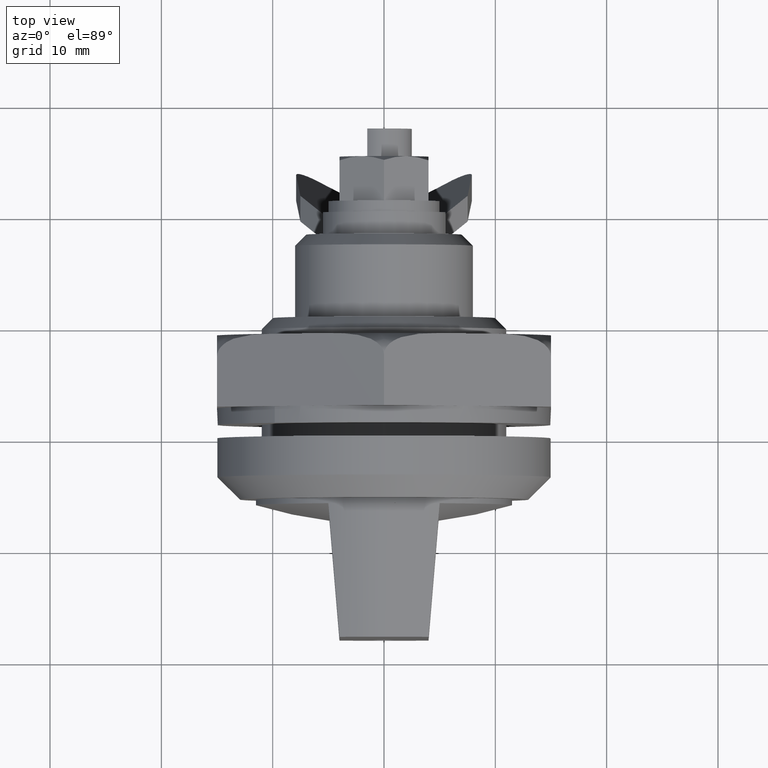
[diagram: clean part render]
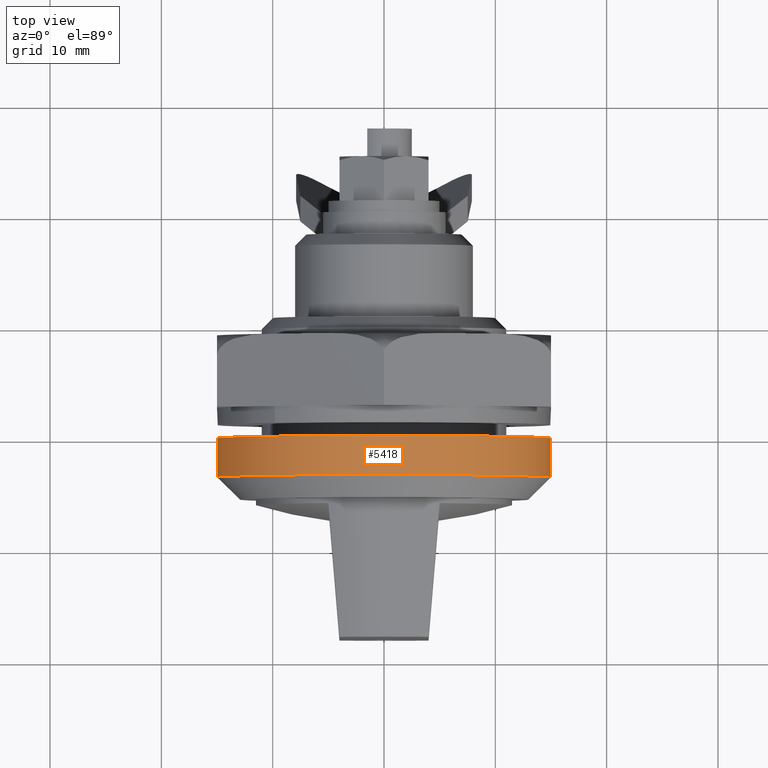
[diagram: same view with one face highlighted and labeled with its STEP entity id]
A machine part, top view. The second image highlights one B-rep face of the part: STEP entity #5418.
In plain terms, the highlighted face is a freeform B-spline surface patch.
Its self-contained STEP definition (entity closure, byte-faithful):
#5041=CARTESIAN_POINT('',(-14.953760005997850,-3.499999999997904,1.176886435934931));
#5042=VERTEX_POINT('',#5041);
#5048=CARTESIAN_POINT('',(-14.972021976327619,-3.499999999997922,0.915728093047656));
#5049=VERTEX_POINT('',#5048);
#5050=CARTESIAN_POINT('',(-14.953760005997857,-3.499999999997904,1.176886435934931));
#5051=CARTESIAN_POINT('',(-14.964030538328123,-3.499999999997912,1.046386949391630));
#5052=CARTESIAN_POINT('',(-14.972021976327627,-3.499999999997922,0.915728093047656));
#5060=(BOUNDED_CURVE()B_SPLINE_CURVE(2,(#5050,#5051,#5052),.UNSPECIFIED.,.F.,.U.)B_SPLINE_CURVE_WITH_KNOTS((3,3),(0.736331300632571,0.739332962241684),.UNSPECIFIED.)CURVE()GEOMETRIC_REPRESENTATION_ITEM()RATIONAL_B_SPLINE_CURVE((0.969723356171407,0.972855475564844,0.976072041672592))REPRESENTATION_ITEM(''));
#5061=EDGE_CURVE('',#5042,#5049,#5060,.T.);
#5099=CARTESIAN_POINT('',(14.972021976327619,-3.499999999997921,-0.915728093047661));
#5100=VERTEX_POINT('',#5099);
#5114=CARTESIAN_POINT('',(0.0,-3.500000000000090,15.0));
#5115=VERTEX_POINT('',#5114);
#5116=CARTESIAN_POINT('',(14.972021976327618,-3.499999999997921,-0.915728093047661));
#5117=CARTESIAN_POINT('',(15.000000000001108,-3.499999999997953,-0.458291449491324));
#5118=CARTESIAN_POINT('',(15.000000000001091,-3.499999999997986,-1.052452E-013));
#5119=CARTESIAN_POINT('',(15.000000000000519,-3.499999999999079,14.999999999999954));
#5120=CARTESIAN_POINT('',(0.0,-3.500000000000090,15.0));
#5128=(BOUNDED_CURVE()B_SPLINE_CURVE(2,(#5116,#5117,#5118,#5119,#5120),.UNSPECIFIED.,.F.,.U.)B_SPLINE_CURVE_WITH_KNOTS((3,2,3),(0.239332962241684,0.250000000000000,0.500000000000000),.UNSPECIFIED.)CURVE()GEOMETRIC_REPRESENTATION_ITEM()RATIONAL_B_SPLINE_CURVE((0.976072041672592,0.987502787903048,1.0,0.707106781186547,1.0))REPRESENTATION_ITEM(''));
#5129=EDGE_CURVE('',#5100,#5115,#5128,.T.);
#5131=CARTESIAN_POINT('',(0.0,-3.500000000000090,15.0));
#5132=CARTESIAN_POINT('',(-13.865857374858358,-3.499999999998997,15.000000000000096));
#5133=CARTESIAN_POINT('',(-14.953760005997857,-3.499999999997904,1.176886435934931));
#5141=(BOUNDED_CURVE()B_SPLINE_CURVE(2,(#5131,#5132,#5133),.UNSPECIFIED.,.F.,.U.)B_SPLINE_CURVE_WITH_KNOTS((3,3),(0.500000000000000,0.736331300632571),.UNSPECIFIED.)CURVE()GEOMETRIC_REPRESENTATION_ITEM()RATIONAL_B_SPLINE_CURVE((1.0,0.723120658605426,0.969723356171407))REPRESENTATION_ITEM(''));
#5142=EDGE_CURVE('',#5115,#5042,#5141,.T.);
#5351=CARTESIAN_POINT('',(14.972021976328000,0.087500000000000,-0.915728093022856));
#5352=CARTESIAN_POINT('',(15.887750069350853,0.087500000000000,14.056293883305143));
#5353=CARTESIAN_POINT('',(0.915728093022855,0.087500000000000,14.972021976328000));
#5354=CARTESIAN_POINT('',(-14.056293883305147,0.087500000000000,15.887750069350853));
#5355=CARTESIAN_POINT('',(-14.972021976328000,0.087500000000000,0.915728093022853));
#5356=CARTESIAN_POINT('',(14.972021976328000,-3.589687500000093,-0.915728093022856));
#5357=CARTESIAN_POINT('',(15.887750069350853,-3.589687500000093,14.056293883305143));
#5358=CARTESIAN_POINT('',(0.915728093022855,-3.589687500000093,14.972021976328000));
#5359=CARTESIAN_POINT('',(-14.056293883305147,-3.589687500000093,15.887750069350853));
#5360=CARTESIAN_POINT('',(-14.972021976328000,-3.589687500000093,0.915728093022853));
#5368=(BOUNDED_SURFACE()B_SPLINE_SURFACE(2,1,((#5351,#5356),(#5352,#5357),(#5353,#5358),(#5354,#5359),(#5355,#5360)),.UNSPECIFIED.,.F.,.F.,.U.)B_SPLINE_SURFACE_WITH_KNOTS((3,2,3),(2,2),(0.0,24.852813742385699,49.705627484771391),(0.0,3.677187500000092),.UNSPECIFIED.)GEOMETRIC_REPRESENTATION_ITEM()RATIONAL_B_SPLINE_SURFACE(((1.0,1.0),(0.707106781186548,0.707106781186548),(1.0,1.0),(0.707106781186548,0.707106781186548),(1.0,1.0)))REPRESENTATION_ITEM('')SURFACE());
#5369=ORIENTED_EDGE('',*,*,#5129,.F.);
#5370=CARTESIAN_POINT('',(14.972022895570889,-2.834850E-015,-0.915713063286929));
#5371=VERTEX_POINT('',#5370);
#5372=CARTESIAN_POINT('',(14.972022895570889,-2.834850E-015,-0.915713063286929));
#5373=CARTESIAN_POINT('',(14.972021976327619,-3.499999999997921,-0.915728093047661));
#5374=QUASI_UNIFORM_CURVE('',1,(#5372,#5373),.UNSPECIFIED.,.F.,.U.);
#5375=EDGE_CURVE('',#5371,#5100,#5374,.T.);
#5376=ORIENTED_EDGE('',*,*,#5375,.F.);
#5377=CARTESIAN_POINT('',(0.0,-2.755364E-015,15.0));
#5378=VERTEX_POINT('',#5377);
#5379=CARTESIAN_POINT('',(14.972022895570886,-2.834850E-015,-0.915713063286929));
#5380=CARTESIAN_POINT('',(14.999999999992564,-2.833708E-015,-0.458283913540036));
#5381=CARTESIAN_POINT('',(14.999999999992680,-2.832493E-015,4.471410E-013));
#5382=CARTESIAN_POINT('',(14.999999999996447,-2.792751E-015,15.000000000000224));
#5383=CARTESIAN_POINT('',(0.0,-2.755364E-015,15.0));
#5391=(BOUNDED_CURVE()B_SPLINE_CURVE(2,(#5379,#5380,#5381,#5382,#5383),.UNSPECIFIED.,.F.,.U.)B_SPLINE_CURVE_WITH_KNOTS((3,2,3),(0.239333135453912,0.250000000000000,0.500000000000000),.UNSPECIFIED.)CURVE()GEOMETRIC_REPRESENTATION_ITEM()RATIONAL_B_SPLINE_CURVE((0.976072412899649,0.987502990833796,1.0,0.707106781186547,1.0))REPRESENTATION_ITEM(''));
#5392=EDGE_CURVE('',#5371,#5378,#5391,.T.);
#5393=ORIENTED_EDGE('',*,*,#5392,.T.);
#5394=CARTESIAN_POINT('',(-14.972022895570889,-2.834850E-015,0.915713063286924));
#5395=VERTEX_POINT('',#5394);
#5396=CARTESIAN_POINT('',(0.0,-2.755364E-015,15.0));
#5397=CARTESIAN_POINT('',(-14.110605195041726,-2.795107E-015,14.999999999999766));
#5398=CARTESIAN_POINT('',(-14.972022895570886,-2.834850E-015,0.915713063286924));
#5406=(BOUNDED_CURVE()B_SPLINE_CURVE(2,(#5396,#5397,#5398),.UNSPECIFIED.,.F.,.U.)B_SPLINE_CURVE_WITH_KNOTS((3,3),(0.500000000000000,0.739333135453912),.UNSPECIFIED.)CURVE()GEOMETRIC_REPRESENTATION_ITEM()RATIONAL_B_SPLINE_CURVE((1.0,0.719603790352751,0.976072412899649))REPRESENTATION_ITEM(''));
#5407=EDGE_CURVE('',#5378,#5395,#5406,.T.);
#5408=ORIENTED_EDGE('',*,*,#5407,.T.);
#5409=CARTESIAN_POINT('',(-14.972022895570889,-2.834850E-015,0.915713063286924));
#5410=CARTESIAN_POINT('',(-14.972021976327619,-3.499999999997922,0.915728093047656));
#5411=QUASI_UNIFORM_CURVE('',1,(#5409,#5410),.UNSPECIFIED.,.F.,.U.);
#5412=EDGE_CURVE('',#5395,#5049,#5411,.T.);
#5413=ORIENTED_EDGE('',*,*,#5412,.T.);
#5414=ORIENTED_EDGE('',*,*,#5061,.F.);
#5415=ORIENTED_EDGE('',*,*,#5142,.F.);
#5416=EDGE_LOOP('',(#5369,#5376,#5393,#5408,#5413,#5414,#5415));
#5417=FACE_OUTER_BOUND('',#5416,.T.);
#5418=ADVANCED_FACE('',(#5417),#5368,.T.);